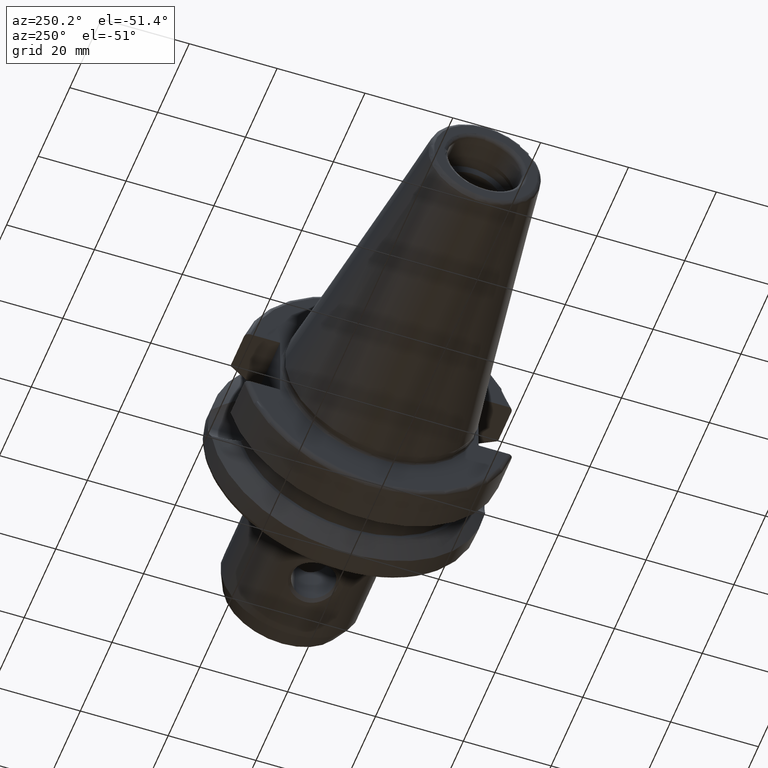
[diagram: clean part render]
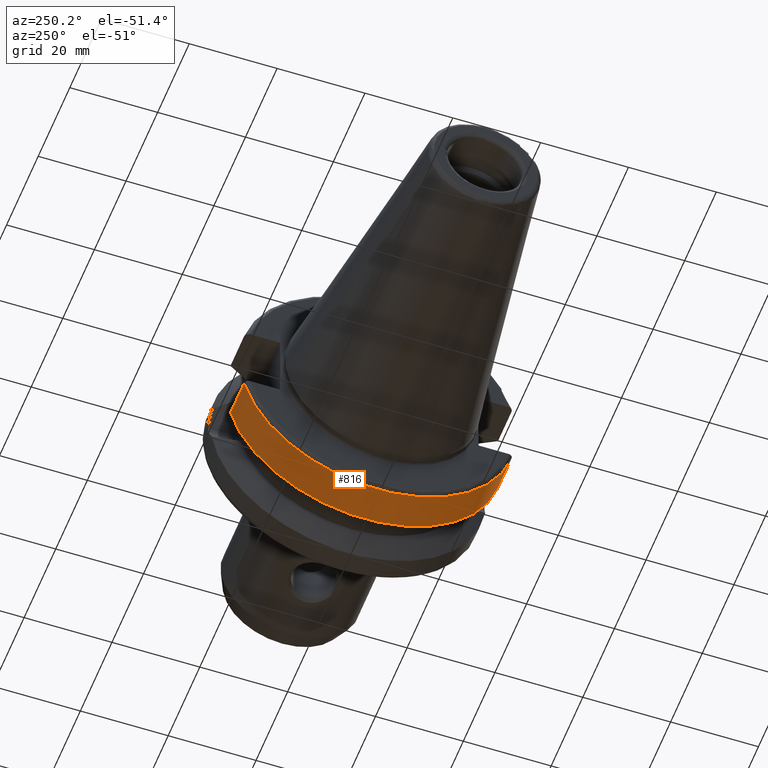
[diagram: same view with one face highlighted and labeled with its STEP entity id]
A machine part, auxiliary view. The second image highlights one B-rep face of the part: STEP entity #816.
In plain terms, the highlighted cylindrical surface (partial cylindrical patch) has radius 31.5 mm, axis along (1, 0, 0).
Its self-contained STEP definition (entity closure, byte-faithful):
#84=CIRCLE('',#912,31.5000000000001);
#85=CIRCLE('',#914,31.5);
#121=CYLINDRICAL_SURFACE('',#913,31.5);
#151=FACE_OUTER_BOUND('',#204,.T.);
#204=EDGE_LOOP('',(#664,#665,#666,#667));
#273=LINE('',#1572,#319);
#280=LINE('',#1637,#326);
#319=VECTOR('',#1054,10.);
#326=VECTOR('',#1097,10.);
#382=VERTEX_POINT('',#1560);
#383=VERTEX_POINT('',#1571);
#394=VERTEX_POINT('',#1629);
#395=VERTEX_POINT('',#1635);
#474=EDGE_CURVE('',#383,#382,#273,.T.);
#493=EDGE_CURVE('',#383,#394,#84,.T.);
#495=EDGE_CURVE('',#382,#395,#85,.T.);
#496=EDGE_CURVE('',#395,#394,#280,.T.);
#664=ORIENTED_EDGE('',*,*,#474,.T.);
#665=ORIENTED_EDGE('',*,*,#495,.T.);
#666=ORIENTED_EDGE('',*,*,#496,.T.);
#667=ORIENTED_EDGE('',*,*,#493,.F.);
#816=ADVANCED_FACE('',(#151),#121,.T.);
#912=AXIS2_PLACEMENT_3D('',#1630,#1091,#1092);
#913=AXIS2_PLACEMENT_3D('',#1634,#1093,#1094);
#914=AXIS2_PLACEMENT_3D('',#1636,#1095,#1096);
#1054=DIRECTION('',(-1.,0.,0.));
#1091=DIRECTION('center_axis',(1.,0.,0.));
#1092=DIRECTION('ref_axis',(0.,0.,-1.));
#1093=DIRECTION('center_axis',(1.,0.,0.));
#1094=DIRECTION('ref_axis',(0.,1.,0.));
#1095=DIRECTION('center_axis',(1.,0.,0.));
#1096=DIRECTION('ref_axis',(0.,0.,-1.));
#1097=DIRECTION('',(1.,0.,0.));
#1560=CARTESIAN_POINT('',(2.99999999999999,-30.4540227227866,-8.05));
#1571=CARTESIAN_POINT('',(11.5690363073382,-30.4540227227866,-8.05));
#1572=CARTESIAN_POINT('',(7.28451815366907,-30.4540227227866,-8.05));
#1629=CARTESIAN_POINT('',(11.5690363073382,30.4540227227866,-8.05));
#1630=CARTESIAN_POINT('Origin',(11.5690363073382,0.,0.));
#1634=CARTESIAN_POINT('Origin',(7.28451815366907,0.,0.));
#1635=CARTESIAN_POINT('',(2.99999999999999,30.4540227227866,-8.05));
#1636=CARTESIAN_POINT('Origin',(2.99999999999999,0.,0.));
#1637=CARTESIAN_POINT('',(7.28451815366907,30.4540227227866,-8.05));